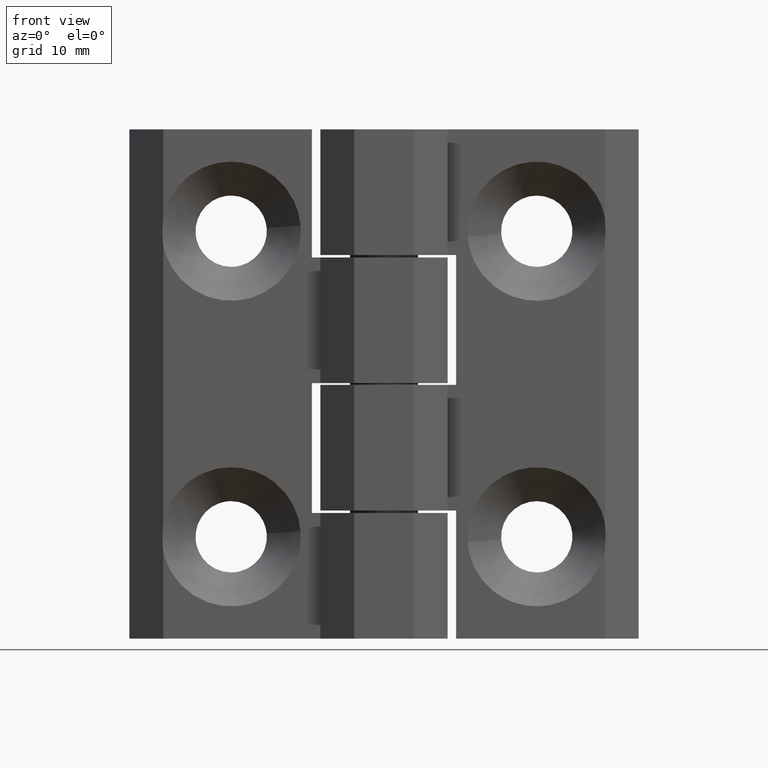
[diagram: clean part render]
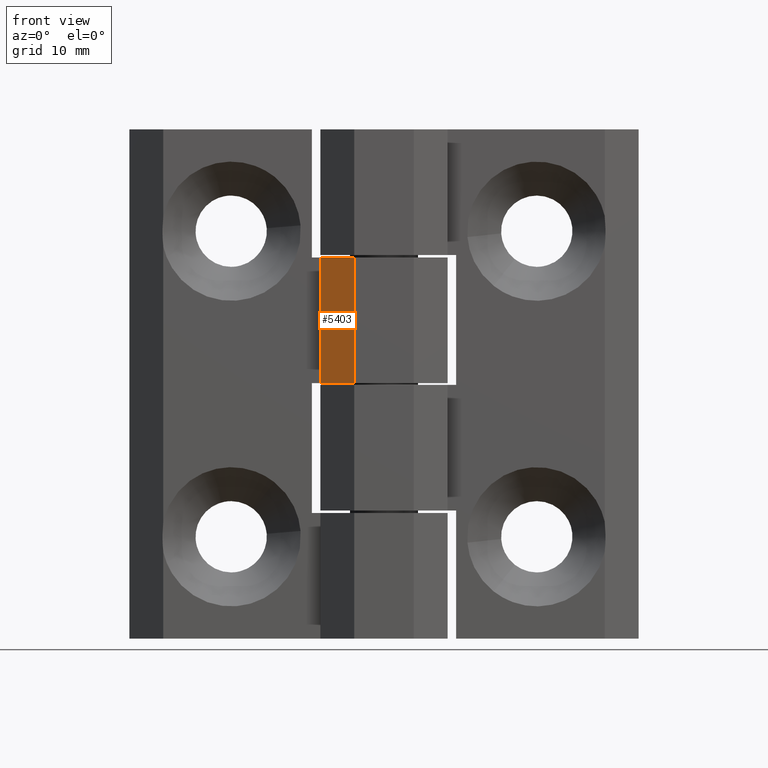
[diagram: same view with one face highlighted and labeled with its STEP entity id]
A machine part, front view. The second image highlights one B-rep face of the part: STEP entity #5403.
In plain terms, the highlighted face is a freeform B-spline surface patch.
Its self-contained STEP definition (entity closure, byte-faithful):
#4753=CARTESIAN_POINT('',(-7.499998931307330,-2.500000118743620,44.900002132635450));
#4754=VERTEX_POINT('',#4753);
#4762=CARTESIAN_POINT('',(-3.499998741317510,-6.500000308733401,44.900002132635407));
#4763=VERTEX_POINT('',#4762);
#4764=CARTESIAN_POINT('',(-3.499998741317510,-6.500000308733401,44.900002132635407));
#4765=CARTESIAN_POINT('',(-7.499998931307330,-2.500000118743620,44.900002132635450));
#4766=QUASI_UNIFORM_CURVE('',1,(#4764,#4765),.UNSPECIFIED.,.F.,.U.);
#4767=EDGE_CURVE('',#4763,#4754,#4766,.T.);
#4890=CARTESIAN_POINT('',(-3.499998741317515,-6.500000308733430,30.100001429673249));
#4891=VERTEX_POINT('',#4890);
#4897=CARTESIAN_POINT('',(-7.499998931307330,-2.500000118743620,30.100001429673299));
#4898=VERTEX_POINT('',#4897);
#4899=CARTESIAN_POINT('',(-3.499998741317515,-6.500000308733430,30.100001429673249));
#4900=CARTESIAN_POINT('',(-7.499998931307330,-2.500000118743620,30.100001429673299));
#4901=QUASI_UNIFORM_CURVE('',1,(#4899,#4900),.UNSPECIFIED.,.F.,.U.);
#4902=EDGE_CURVE('',#4891,#4898,#4901,.T.);
#5363=CARTESIAN_POINT('',(-3.499998741317510,-6.500000308733401,44.900002132635407));
#5364=CARTESIAN_POINT('',(-3.499998741317515,-6.500000308733430,30.100001429673249));
#5365=QUASI_UNIFORM_CURVE('',1,(#5363,#5364),.UNSPECIFIED.,.F.,.U.);
#5366=EDGE_CURVE('',#4763,#4891,#5365,.T.);
#5388=CARTESIAN_POINT('',(-3.300198664482039,-6.699800385568941,29.360742309712460));
#5389=CARTESIAN_POINT('',(-7.699799043905612,-2.300200006145337,29.360742309712460));
#5390=CARTESIAN_POINT('',(-3.300198664482039,-6.699800385568941,45.639261384918562));
#5391=CARTESIAN_POINT('',(-7.699799043905612,-2.300200006145337,45.639261384918562));
#5392=B_SPLINE_SURFACE_WITH_KNOTS('',1,1,((#5388,#5390),(#5389,#5391)),.UNSPECIFIED.,.F.,.F.,.U.,(2,2),(2,2),(0.0,6.221974525602654),(0.0,16.278519075206091),.UNSPECIFIED.);
#5393=ORIENTED_EDGE('',*,*,#5366,.F.);
#5394=ORIENTED_EDGE('',*,*,#4767,.T.);
#5395=CARTESIAN_POINT('',(-7.499998931307330,-2.500000118743620,44.900002132635450));
#5396=CARTESIAN_POINT('',(-7.499998931307330,-2.500000118743620,30.100001429673299));
#5397=QUASI_UNIFORM_CURVE('',1,(#5395,#5396),.UNSPECIFIED.,.F.,.U.);
#5398=EDGE_CURVE('',#4754,#4898,#5397,.T.);
#5399=ORIENTED_EDGE('',*,*,#5398,.T.);
#5400=ORIENTED_EDGE('',*,*,#4902,.F.);
#5401=EDGE_LOOP('',(#5393,#5394,#5399,#5400));
#5402=FACE_OUTER_BOUND('',#5401,.T.);
#5403=ADVANCED_FACE('',(#5402),#5392,.F.);